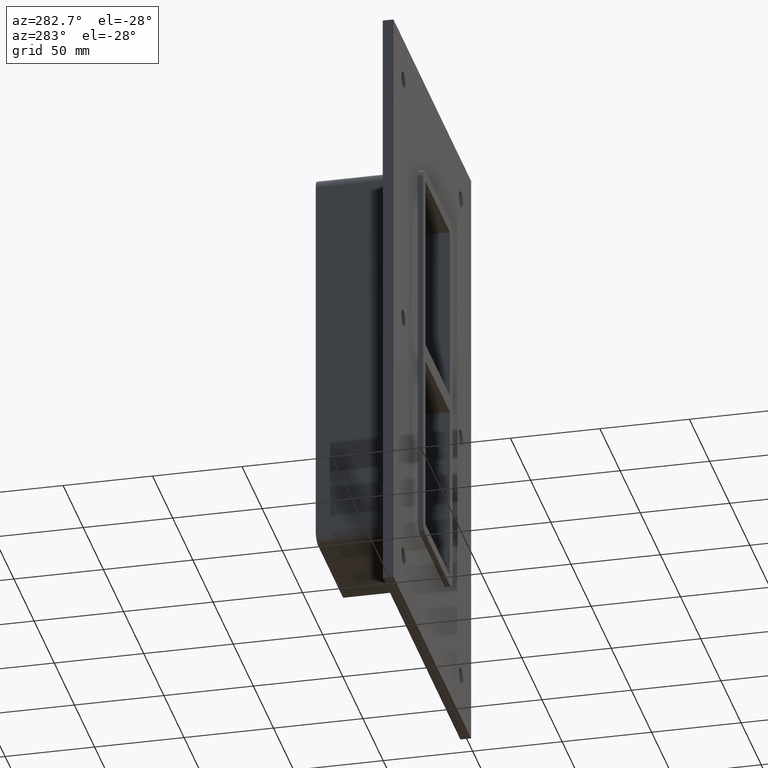
[diagram: clean part render]
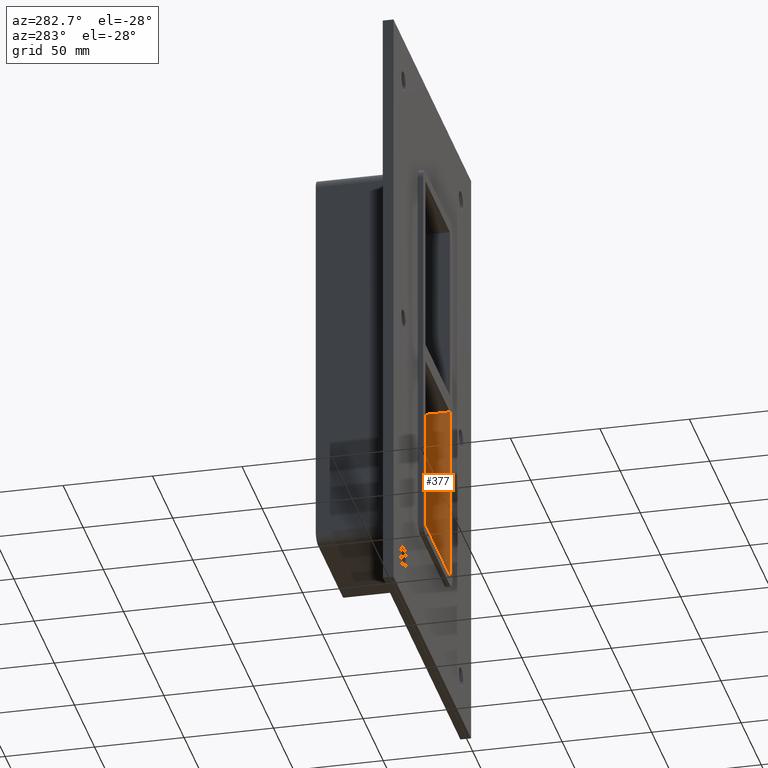
[diagram: same view with one face highlighted and labeled with its STEP entity id]
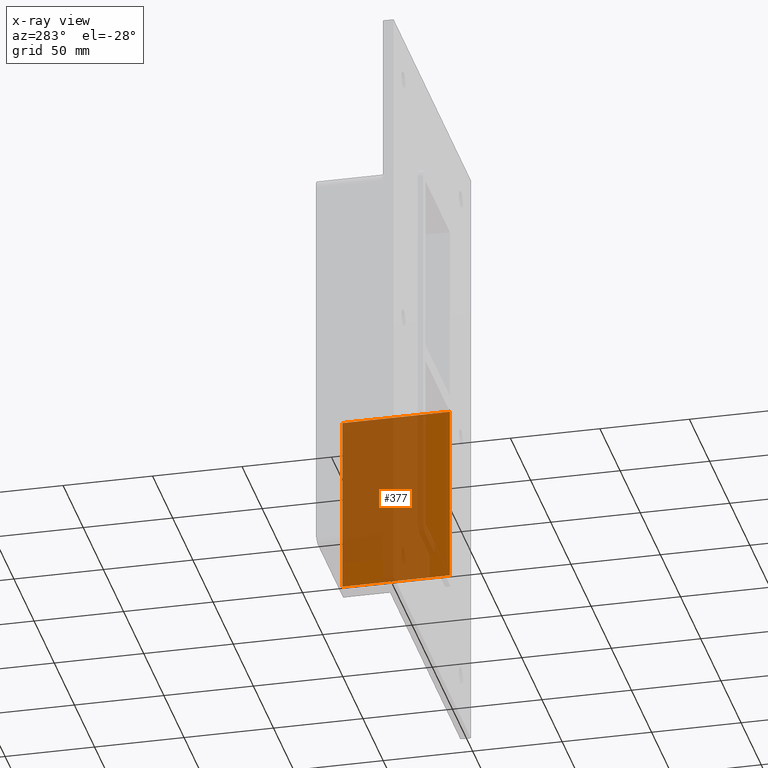
[diagram: x-ray of the same camera — body ghosted, the highlighted face saturated]
A machine part, auxiliary view. The second image highlights one B-rep face of the part: STEP entity #377.
The next image is the same camera in x-ray: the body ghosted, the highlighted face saturated — about 73% of this face is hidden behind the body in this view.
In plain terms, the highlighted planar face has unit normal (1, 0, 0).
Its self-contained STEP definition (entity closure, byte-faithful):
#241=CARTESIAN_POINT('',(30.249999999996362,-3.0,-5.000000000010836));
#242=VERTEX_POINT('',#241);
#259=CARTESIAN_POINT('',(30.249999999996362,57.0,-5.000000000010836));
#260=VERTEX_POINT('',#259);
#267=CARTESIAN_POINT('',(30.249999999999986,-3.0,-5.000000000010836));
#268=DIRECTION('',(0.0,1.0,0.0));
#269=VECTOR('',#268,60.000000000000007);
#270=LINE('',#267,#269);
#271=EDGE_CURVE('',#242,#260,#270,.T.);
#347=CARTESIAN_POINT('',(30.249999999999986,0.0,105.99999999999994));
#348=DIRECTION('',(1.0,0.0,0.0));
#349=DIRECTION('',(0.0,0.0,-1.0));
#350=AXIS2_PLACEMENT_3D('',#347,#348,#349);
#351=PLANE('',#350);
#352=ORIENTED_EDGE('',*,*,#271,.T.);
#353=CARTESIAN_POINT('',(30.249999999999986,57.0,-106.00000000000001));
#354=VERTEX_POINT('',#353);
#355=CARTESIAN_POINT('',(30.249999999999986,57.0,-106.00000000000003));
#356=DIRECTION('',(0.0,0.0,1.0));
#357=VECTOR('',#356,100.9999999999892);
#358=LINE('',#355,#357);
#359=EDGE_CURVE('',#354,#260,#358,.T.);
#360=ORIENTED_EDGE('',*,*,#359,.F.);
#361=CARTESIAN_POINT('',(30.249999999999986,-3.0,-106.00000000000001));
#362=VERTEX_POINT('',#361);
#363=CARTESIAN_POINT('',(30.249999999999986,56.999999999999993,-106.00000000000001));
#364=DIRECTION('',(0.0,-1.0,0.0));
#365=VECTOR('',#364,59.999999999999993);
#366=LINE('',#363,#365);
#367=EDGE_CURVE('',#354,#362,#366,.T.);
#368=ORIENTED_EDGE('',*,*,#367,.T.);
#369=CARTESIAN_POINT('',(30.249999999999986,-3.0,-5.000000000010836));
#370=DIRECTION('',(0.0,0.0,-1.0));
#371=VECTOR('',#370,100.9999999999892);
#372=LINE('',#369,#371);
#373=EDGE_CURVE('',#242,#362,#372,.T.);
#374=ORIENTED_EDGE('',*,*,#373,.F.);
#375=EDGE_LOOP('',(#352,#360,#368,#374));
#376=FACE_OUTER_BOUND('',#375,.T.);
#377=ADVANCED_FACE('',(#376),#351,.F.);